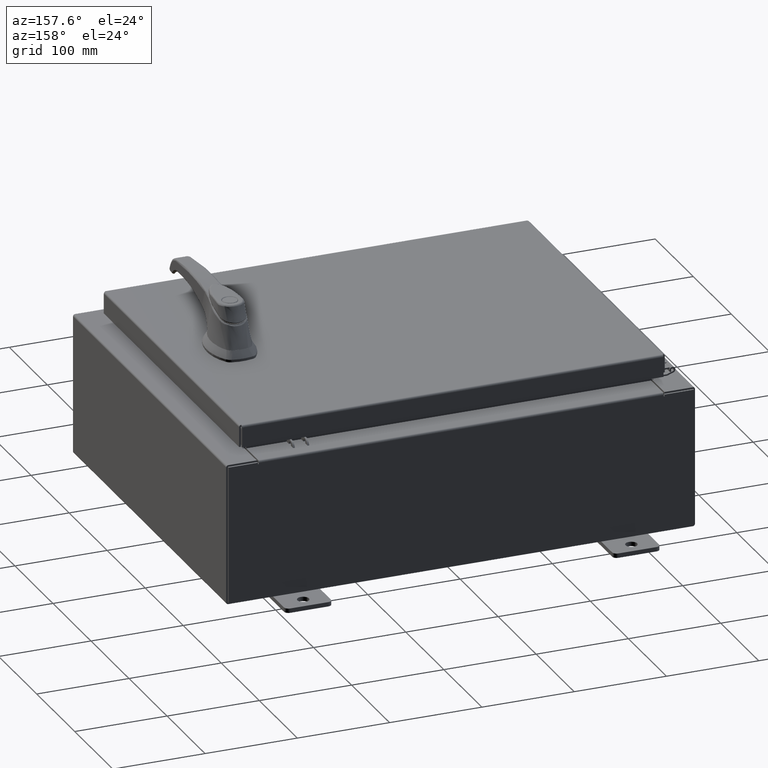
[diagram: clean part render]
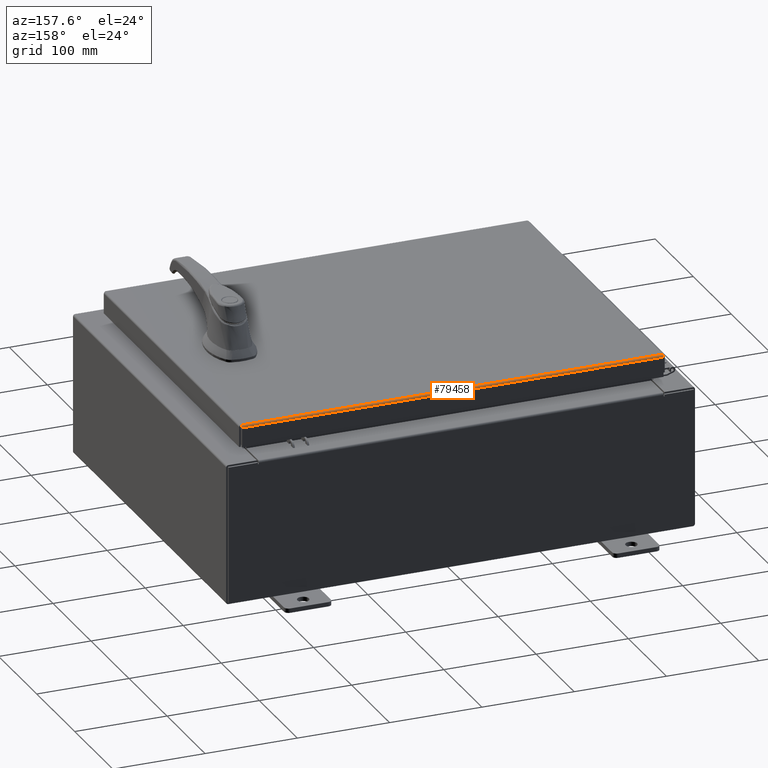
[diagram: same view with one face highlighted and labeled with its STEP entity id]
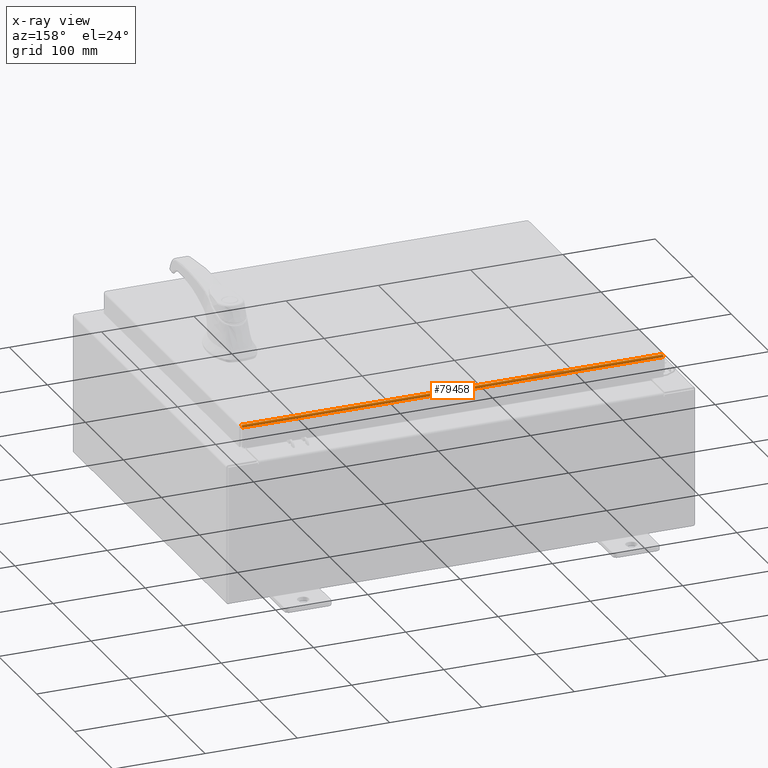
[diagram: x-ray of the same camera — body ghosted, the highlighted face saturated]
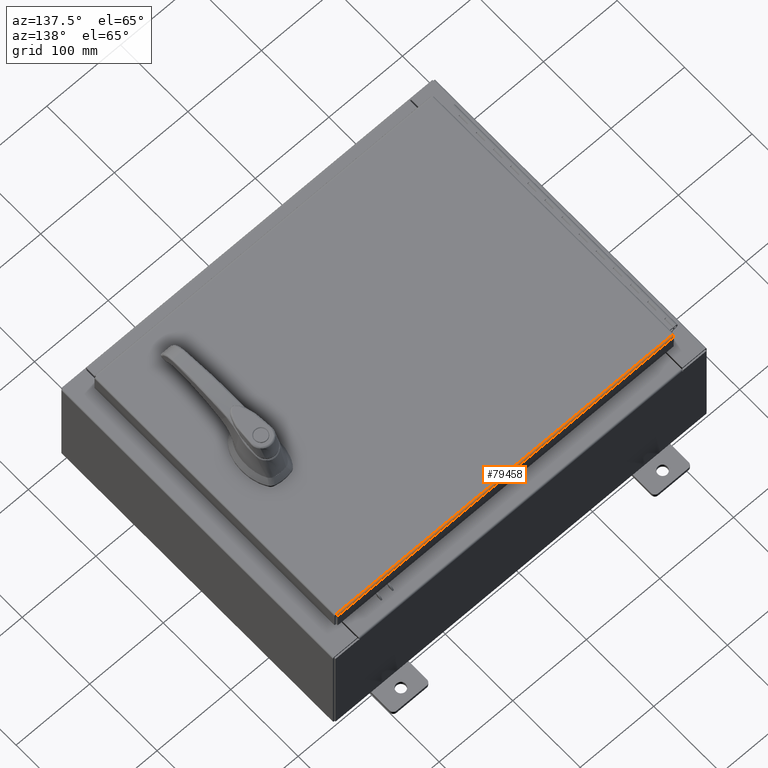
[diagram: same view with one face highlighted and labeled with its STEP entity id]
A machine part, auxiliary view. The second image highlights one B-rep face of the part: STEP entity #79458.
The next image is the same camera in x-ray: the body ghosted, the highlighted face saturated — about 0% of this face is hidden behind the body in this view.
A second angle (auxiliary view) of the same face is appended — the face is thin or edge-on in the first view.
In plain terms, the highlighted cylindrical surface (edge-blend (fillet) strip) has radius 2.2276 mm, axis along (1, 0, 0).
Its self-contained STEP definition (entity closure, byte-faithful):
#1358 = CARTESIAN_POINT ( 'NONE',  ( 8.989157864376267100, 7.094000000000001200, -0.08769999999999997200 ) ) ;
#3311 = VERTEX_POINT ( 'NONE', #35792 ) ;
#4216 = CARTESIAN_POINT ( 'NONE',  ( -8.989157864376267100, 7.094000000000001200, -0.08769999999999997200 ) ) ;
#12132 = CARTESIAN_POINT ( 'NONE',  ( -8.990299999999999500, 7.006300000000001300, -1.843997395723377600E-015 ) ) ;
#14139 = CARTESIAN_POINT ( 'NONE',  ( 8.990300000000001300, 7.006300000000001300, -0.08770000000000031900 ) ) ;
#15501 = VECTOR ( 'NONE', #49382, 39.37007874015748100 ) ;
#17885 = CARTESIAN_POINT ( 'NONE',  ( 8.989538576250840400, 7.082931066258669100, -0.04353261542147220100 ) ) ;
#22441 = DIRECTION ( 'NONE',  ( 1.000000000000000000, 0.0000000000000000000, 0.0000000000000000000 ) ) ;
#24727 = CARTESIAN_POINT ( 'NONE',  ( 8.989157864376267100, 7.094000000000001200, -0.08769999999999997200 ) ) ;
#26152 = CARTESIAN_POINT ( 'NONE',  ( 8.989824110156776600, 7.060195747341802000, -0.01756921792167976200 ) ) ;
#26505 = CARTESIAN_POINT ( 'NONE',  ( 8.990300000000001300, 7.006300000000001300, -2.219626494852214000E-016 ) ) ;
#27828 = ORIENTED_EDGE ( 'NONE', *, *, #73376, .F. ) ;
#28654 = CARTESIAN_POINT ( 'NONE',  ( -8.990109644062711100, 7.029255289458311600, -0.002282596256188945100 ) ) ;
#29061 = ORIENTED_EDGE ( 'NONE', *, *, #50105, .F. ) ;
#29257 = FACE_OUTER_BOUND ( 'NONE', #107261, .T. ) ;
#32746 = VERTEX_POINT ( 'NONE', #47952 ) ;
#34518 = CARTESIAN_POINT ( 'NONE',  ( 8.990109644062711100, 7.029255289458310700, -0.002282596256188945500 ) ) ;
#35792 = CARTESIAN_POINT ( 'NONE',  ( 8.990300000000001300, 7.006300000000001300, -2.219626494852214000E-016 ) ) ;
#36415 = EDGE_CURVE ( 'NONE', #38375, #32746, #103691, .T. ) ;
#37021 = CARTESIAN_POINT ( 'NONE',  ( -8.989824110156776600, 7.060195747341802900, -0.01756921792167975800 ) ) ;
#38375 = VERTEX_POINT ( 'NONE', #24727 ) ;
#41140 = CARTESIAN_POINT ( 'NONE',  ( -9.077999999999999400, 7.094000000000001200, -0.08769999999999997200 ) ) ;
#42741 = CARTESIAN_POINT ( 'NONE',  ( 8.990300000000001300, 7.006300000000001300, -2.219626494852214000E-016 ) ) ;
#44117 = VECTOR ( 'NONE', #92974, 39.37007874015748100 ) ;
#44906 = CARTESIAN_POINT ( 'NONE',  ( -8.990204822031353500, 7.017779903154994300, -2.229964298539175300E-016 ) ) ;
#45244 = CARTESIAN_POINT ( 'NONE',  ( -8.989538576250844000, 7.082931066258669100, -0.04353261542147220100 ) ) ;
#47952 = CARTESIAN_POINT ( 'NONE',  ( -8.989157864376267100, 7.094000000000001200, -0.08769999999999997200 ) ) ;
#49382 = DIRECTION ( 'NONE',  ( -1.000000000000000000, -4.858276889142553200E-031, -1.863630459400616000E-045 ) ) ;
#50105 = EDGE_CURVE ( 'NONE', #38375, #3311, #100126, .T. ) ;
#50671 = CARTESIAN_POINT ( 'NONE',  ( 8.989253042344911300, 7.093999999999999400, -0.07622009684500727400 ) ) ;
#53541 = CARTESIAN_POINT ( 'NONE',  ( -8.989253042344911300, 7.094000000000001200, -0.07622009684500730100 ) ) ;
#54102 = CARTESIAN_POINT ( 'NONE',  ( -8.990299999999999500, 7.006300000000001300, -1.843997395723377600E-015 ) ) ;
#63464 = DIRECTION ( 'NONE',  ( 0.0000000000000000000, 1.000000000000000000, 3.893740013774593800E-015 ) ) ;
#67282 = CARTESIAN_POINT ( 'NONE',  ( 8.989348220313557300, 7.091717403743812700, -0.06474471054169114700 ) ) ;
#67449 = EDGE_CURVE ( 'NONE', #3311, #88703, #76565, .T. ) ;
#70889 = B_SPLINE_CURVE_WITH_KNOTS ( 'NONE', 3,
 ( #12132, #44906, #28654, #86746, #37021, #95141, #45244, #103440, #53541, #4216 ),
 .UNSPECIFIED., .F., .F.,
 ( 4, 2, 2, 2, 4 ),
 ( 0.0000000000000000000, 0.2500000000000000000, 0.5000000000000000000, 0.7500000000000000000, 1.000000000000000000 ),
 .UNSPECIFIED. ) ;
#73376 = EDGE_CURVE ( 'NONE', #88703, #32746, #70889, .T. ) ;
#75601 = ORIENTED_EDGE ( 'NONE', *, *, #67449, .F. ) ;
#75703 = CARTESIAN_POINT ( 'NONE',  ( 8.989633754219488200, 7.076430782078321400, -0.03380425265820006400 ) ) ;
#76565 = LINE ( 'NONE', #26505, #44117 ) ;
#79458 = ADVANCED_FACE ( 'NONE', ( #29257 ), #92953, .T. ) ;
#84166 = CARTESIAN_POINT ( 'NONE',  ( 8.989919288125422600, 7.050467384578529300, -0.01106893374133177300 ) ) ;
#86111 = AXIS2_PLACEMENT_3D ( 'NONE', #14139, #22441, #63464 ) ;
#86746 = CARTESIAN_POINT ( 'NONE',  ( -8.989919288125420800, 7.050467384578526600, -0.01106893374133177300 ) ) ;
#88703 = VERTEX_POINT ( 'NONE', #54102 ) ;
#91254 = ORIENTED_EDGE ( 'NONE', *, *, #36415, .T. ) ;
#92625 = CARTESIAN_POINT ( 'NONE',  ( 8.990204822031357100, 7.017779903154994300, -2.224295180388261000E-016 ) ) ;
#92953 = CYLINDRICAL_SURFACE ( 'NONE', #86111, 0.08770000000000026400 ) ;
#92974 = DIRECTION ( 'NONE',  ( -1.000000000000000000, -0.0000000000000000000, -0.0000000000000000000 ) ) ;
#95141 = CARTESIAN_POINT ( 'NONE',  ( -8.989633754219490000, 7.076430782078319700, -0.03380425265820006400 ) ) ;
#100126 = B_SPLINE_CURVE_WITH_KNOTS ( 'NONE', 3,
 ( #1358, #50671, #67282, #17885, #75703, #26152, #84166, #34518, #92625, #42741 ),
 .UNSPECIFIED., .F., .F.,
 ( 4, 2, 2, 2, 4 ),
 ( 0.0000000000000000000, 0.2500000000000000000, 0.5000000000000000000, 0.7500000000000000000, 1.000000000000000000 ),
 .UNSPECIFIED. ) ;
#103440 = CARTESIAN_POINT ( 'NONE',  ( -8.989348220313555500, 7.091717403743813500, -0.06474471054169114700 ) ) ;
#103691 = LINE ( 'NONE', #41140, #15501 ) ;
#107261 = EDGE_LOOP ( 'NONE', ( #75601, #29061, #91254, #27828 ) ) ;